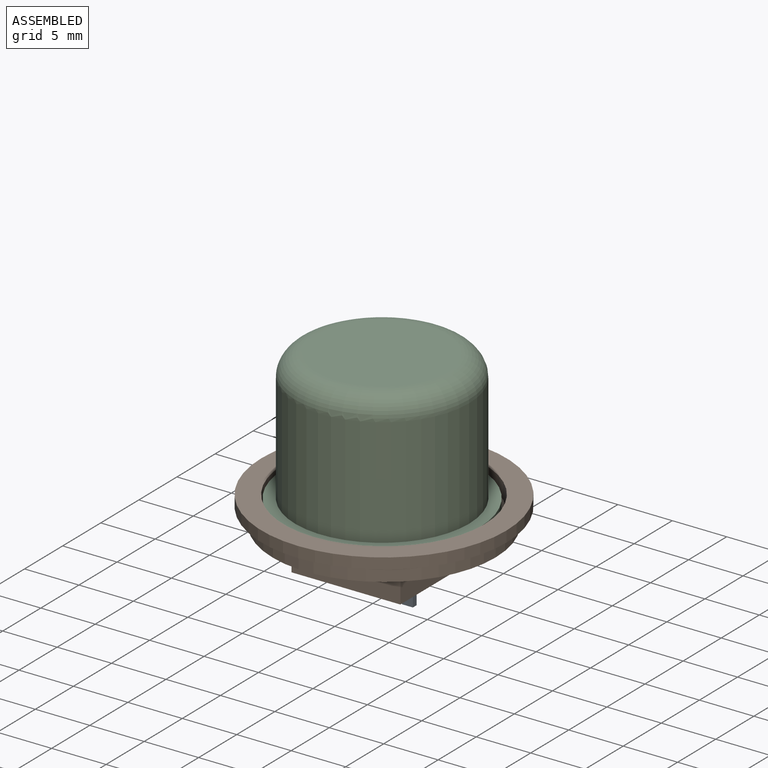
[diagram: assembled view]
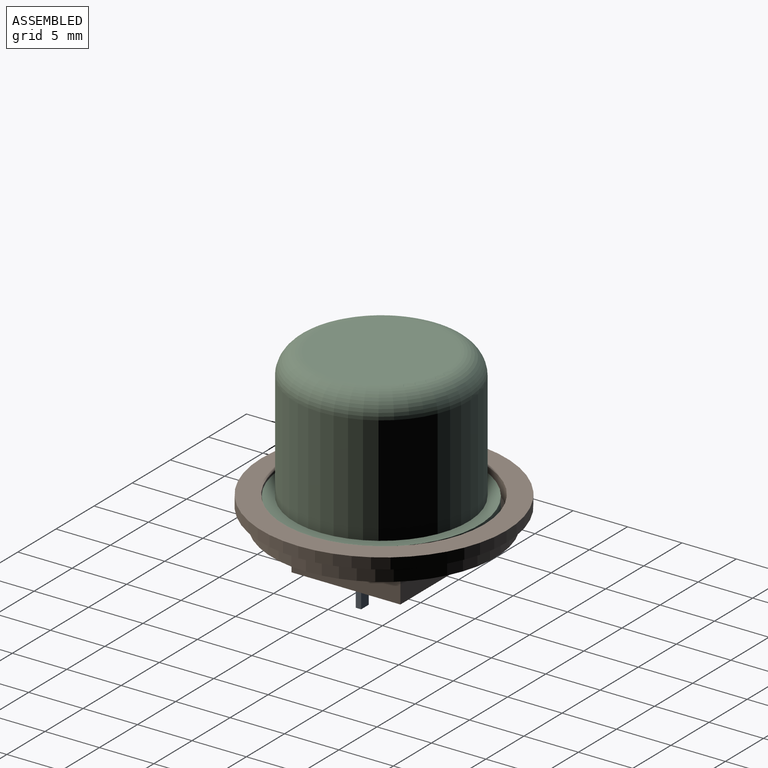
[diagram: assembled view, second angle]
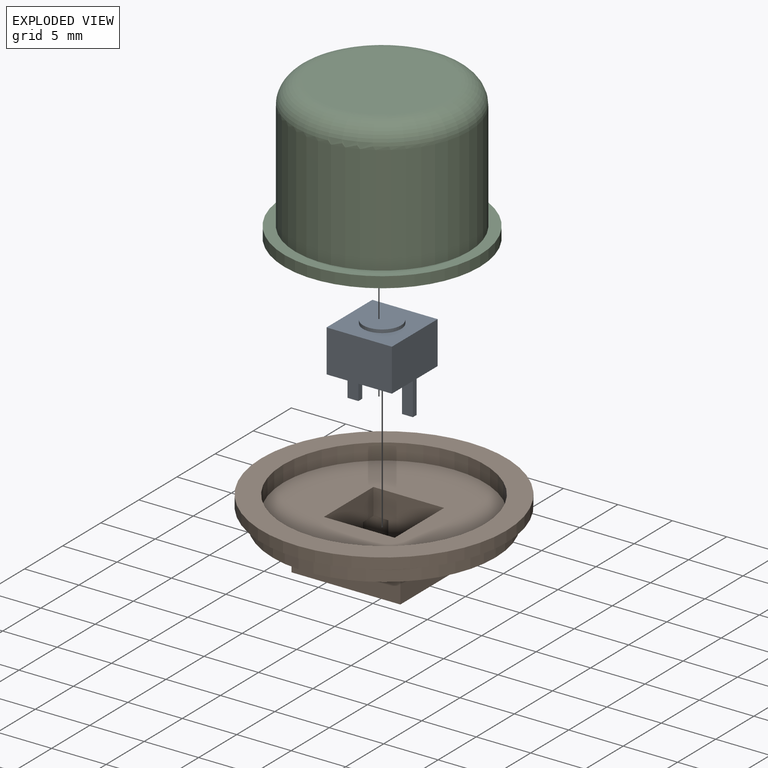
[diagram: exploded view]
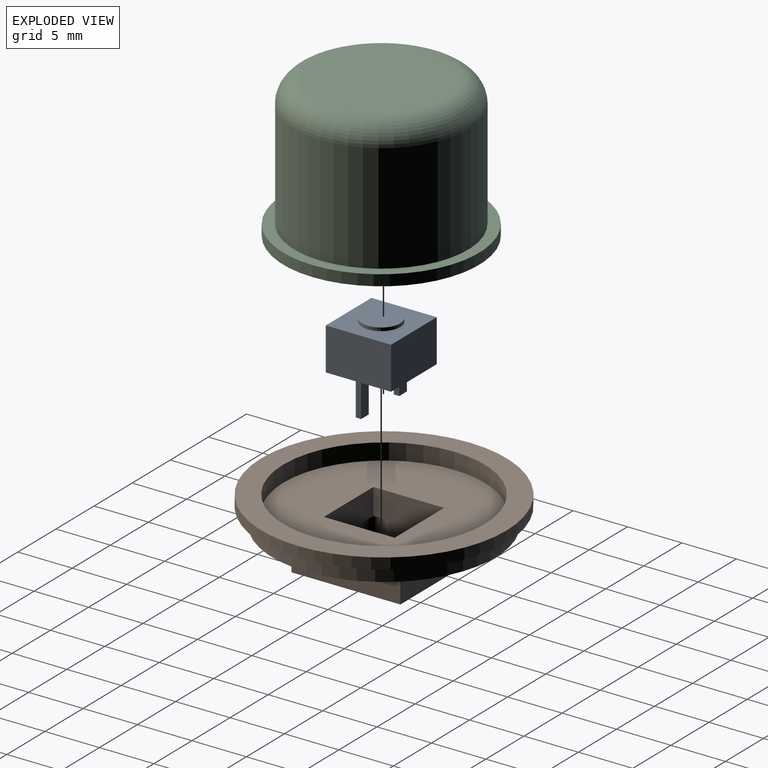
[diagram: exploded view, second angle]
ASSEMBLY  parts=3 mates=2
PART A: 16 faces, bbox 6x6x7.2 mm
  f0: plane 6.9x6mm, normal (1,0,0), area 24.9mm2, adj f1,f3,f4,f5,f12,f14,f15
  f1: plane 6x3.9mm, normal (0,1,0), area 23.4mm2, adj f0,f2,f4,f5
  f2: plane 6.9x6mm, normal (-1,0,0), area 24.9mm2, adj f1,f3,f4,f5,f8,f9,f11
  f3: plane 6x3.9mm, normal (0,-1,0), area 23.4mm2, adj f0,f2,f4,f5
  f4: plane 6x6mm, normal (0,0,1), area 26.4mm2, adj f0,f1,f2,f3,f6
  f5: plane 6x6mm, normal (0,0,-1), area 35mm2, adj f0,f1,f2,f3,f8,f9,f10,f12
  f6: cylinder r=1.75mm len=3.5mm, axis (0,0,-1), area 3.3mm2, adj f4,f7
  f7: plane 3.5x3.5mm, normal (0,0,1), area 9.6mm2, adj f6
  f8: plane 3x1mm, normal (0,-1,0), area 3mm2, adj f2,f5,f10,f11
  f9: plane 3x1mm, normal (0,1,0), area 3mm2, adj f2,f5,f10,f11
  f10: plane 3x0.5mm, normal (1,0,0), area 1.5mm2, adj f5,f8,f9,f11
  f11: plane 1x0.5mm, normal (0,0,-1), area 0.5mm2, adj f2,f8,f9,f10
  f12: plane 3x1mm, normal (0,-1,0), area 3mm2, adj f0,f5,f13,f15
  f13: plane 3x0.5mm, normal (-1,0,0), area 1.5mm2, adj f5,f12,f14,f15
  f14: plane 3x1mm, normal (0,1,0), area 3mm2, adj f0,f5,f13,f15
  f15: plane 1x0.5mm, normal (0,0,-1), area 0.5mm2, adj f0,f12,f13,f14
PART B: 25 faces, bbox 22.5x22.5x5.9 mm
  f0: plane 18.5x18.5mm, normal (0,0,1), area 226.6mm2, adj f6,f7,f8,f9,f21
  f1: plane 10x3.4mm, normal (1,0,0), area 34mm2, adj f2,f4,f5,f20
  f2: plane 10x3.4mm, normal (0,1,0), area 34mm2, adj f1,f3,f5,f20
  f3: plane 10x3.4mm, normal (-1,0,0), area 34mm2, adj f2,f4,f5,f20
  f4: plane 10x3.4mm, normal (0,-1,0), area 34mm2, adj f1,f3,f5,f20
  f5: plane 10x10mm, normal (0,0,-1), area 87.4mm2, adj f1,f2,f3,f4,f11,f12,f13,f14
  f6: plane 6.5x3.9mm, normal (0,1,0), area 21.3mm2, adj f0,f7,f9,f10,f13,f14,f15,f18
  f7: plane 6.5x3.9mm, normal (-1,0,0), area 21.3mm2, adj f0,f6,f8,f10,f12,f13,f17,f18
  f8: plane 6.5x3.9mm, normal (0,-1,0), area 21.3mm2, adj f0,f7,f9,f10,f11,f12,f16,f17
  f9: plane 6.5x3.9mm, normal (1,0,0), area 21.3mm2, adj f0,f6,f8,f10,f11,f14,f15,f16
  f10: plane 6.5x6.5mm, normal (0,0,1), area 34.3mm2, adj f6,f7,f8,f9,f11,f12,f13,f14
  f11: cylinder r=1mm len=2mm, axis (0,0,1), area 8.6mm2, adj f5,f8,f9,f10,f16
  f12: cylinder r=1mm len=2mm, axis (0,0,1), area 8.6mm2, adj f5,f7,f8,f10,f17
  f13: cylinder r=1mm len=2mm, axis (0,0,1), area 8.6mm2, adj f5,f6,f7,f10,f18
  f14: cylinder r=1mm len=2mm, axis (0,0,1), area 8.6mm2, adj f5,f6,f9,f10,f15
  f15: plane 1.87x1.87mm, normal (0,0,-1), area 1.1mm2, adj f6,f9,f14
  f16: plane 1.87x1.87mm, normal (0,0,-1), area 1.1mm2, adj f8,f9,f11
  f17: plane 1.87x1.87mm, normal (0,0,-1), area 1.1mm2, adj f7,f8,f12
  f18: plane 1.87x1.87mm, normal (0,0,-1), area 1.1mm2, adj f6,f7,f13
  f19: cylinder r=10.25mm len=20.5mm, axis (0,0,1), area 96.6mm2, adj f20,f24
  f20: plane 20.5x20.5mm, normal (0,0,-1), area 230.1mm2, adj f1,f2,f3,f4,f19
  f21: cylinder r=9.25mm len=18.5mm, axis (0,0,-1), area 87.2mm2, adj f0,f23
  f22: cylinder r=11.25mm len=22.5mm, axis (0,0,-1), area 70.7mm2, adj f23,f24
  f23: plane 22.5x22.5mm, normal (0,0,1), area 128.8mm2, adj f21,f22
  f24: plane 22.5x22.5mm, normal (0,0,-1), area 67.5mm2, adj f19,f22
PART C: 12 faces, bbox 18x18x13 mm
  f0: cylinder r=7mm len=14mm, axis (0,0,-1), area 439.8mm2, adj f3,f11
  f1: cylinder r=9mm len=18mm, axis (0,0,-1), area 56.5mm2, adj f2,f3
  f2: plane 18x18mm, normal (0,0,1), area 53.4mm2, adj f1,f4
  f3: plane 18x18mm, normal (0,0,-1), area 100.5mm2, adj f0,f1
  f4: cylinder r=8mm len=16mm, axis (0,0,-1), area 502.7mm2, adj f2,f7
  f5: plane 12x12mm, normal (0,0,-1), area 93.5mm2, adj f10,f11
  f6: plane 12x12mm, normal (0,0,1), area 113.1mm2, adj f7
  f7: torus R=6mm, axis (0,0,1), area 143.6mm2, adj f4,f6
  f8: cylinder r=1.5mm len=10mm, axis (0,0,1), area 94.2mm2, adj f9,f10
  f9: plane 3x3mm, normal (0,0,-1), area 7.1mm2, adj f8
  f10: torus R=2.5mm, axis (0,0,1), area 18.4mm2, adj f5,f8
  f11: torus R=6mm, axis (0,0,1), area 65.5mm2, adj f0,f5
PLACE A t=(10.02,6.91,0.36)mm
PLACE B t=(10.02,7.16,-0.14)mm
PLACE C t=(10.02,6.91,4.56)mm
MATE parallel A.f5 <-> B.f10  axis (0,0,-1) through (10.02,3.91,0.36)mm
MATE parallel C.f0 <-> A.f6  axis (0,0,-1) through (10.02,6.91,4.56)mm
